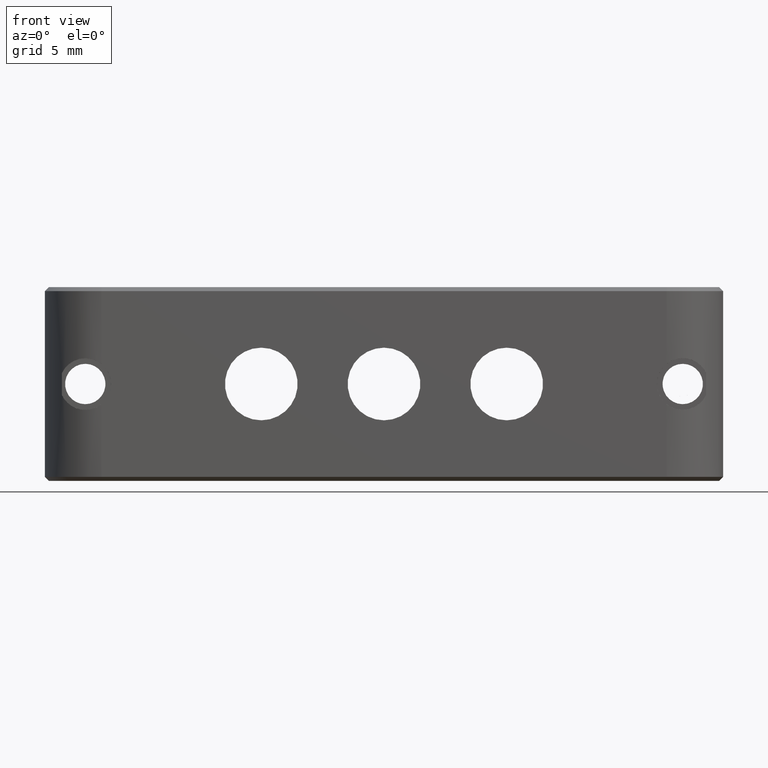
[diagram: clean part render]
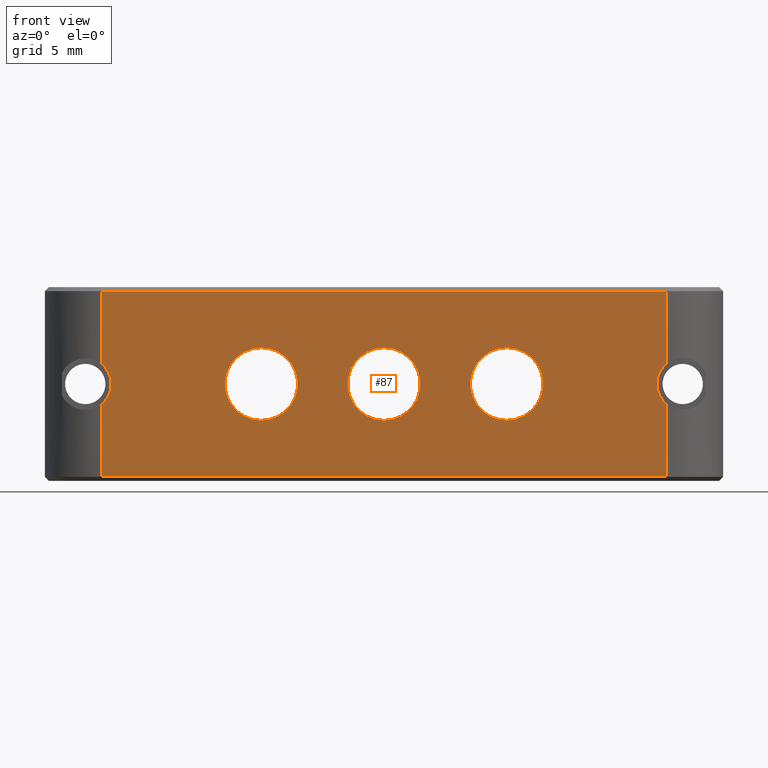
[diagram: same view with one face highlighted and labeled with its STEP entity id]
A machine part, front view. The second image highlights one B-rep face of the part: STEP entity #87.
In plain terms, the highlighted planar face has unit normal (0, 1, -0).
Its self-contained STEP definition (entity closure, byte-faithful):
#56 = VERTEX_POINT ( 'NONE', #5358 ) ;
#72 = DIRECTION ( 'NONE',  ( 0.000000000000000000, 0.000000000000000000, -1.000000000000000000 ) ) ;
#87 = ADVANCED_FACE ( 'NONE', ( #3941, #1854, #1495, #2783 ), #4001, .F. ) ;
#168 = VERTEX_POINT ( 'NONE', #1045 ) ;
#234 = DIRECTION ( 'NONE',  ( 0.000000000000000000, 0.000000000000000000, 1.000000000000000000 ) ) ;
#265 = CIRCLE ( 'NONE', #3100, 2.249999999999997780 ) ;
#274 = DIRECTION ( 'NONE',  ( 0.000000000000000000, 0.000000000000000000, 1.000000000000000000 ) ) ;
#282 = EDGE_LOOP ( 'NONE', ( #1926, #2151 ) ) ;
#350 = EDGE_LOOP ( 'NONE', ( #4413, #3631 ) ) ;
#420 = EDGE_CURVE ( 'NONE', #5262, #4176, #1555, .T. ) ;
#441 = CARTESIAN_POINT ( 'NONE',  ( -7.599999999999999645, -5.204170427930421283E-15, -2.249999999999997780 ) ) ;
#462 = DIRECTION ( 'NONE',  ( 0.000000000000000000, 0.000000000000000000, 1.000000000000000000 ) ) ;
#500 = DIRECTION ( 'NONE',  ( -0.000000000000000000, 1.000000000000000000, -0.000000000000000000 ) ) ;
#545 = EDGE_CURVE ( 'NONE', #5189, #4300, #1122, .T. ) ;
#565 = ORIENTED_EDGE ( 'NONE', *, *, #655, .T. ) ;
#607 = EDGE_CURVE ( 'NONE', #4176, #5189, #2178, .T. ) ;
#609 = EDGE_CURVE ( 'NONE', #5085, #1171, #4975, .T. ) ;
#632 = VERTEX_POINT ( 'NONE', #5626 ) ;
#655 = EDGE_CURVE ( 'NONE', #1182, #4564, #2114, .T. ) ;
#711 = ORIENTED_EDGE ( 'NONE', *, *, #545, .T. ) ;
#836 = CIRCLE ( 'NONE', #5542, 2.249999999999997780 ) ;
#873 = DIRECTION ( 'NONE',  ( 0.000000000000000000, 0.000000000000000000, 1.000000000000000000 ) ) ;
#998 = CIRCLE ( 'NONE', #1873, 2.249999999999997780 ) ;
#1045 = CARTESIAN_POINT ( 'NONE',  ( -17.50000000000000355, -5.204170427930421283E-15, 1.248999599679689210 ) ) ;
#1058 = CARTESIAN_POINT ( 'NONE',  ( -17.50000000000000355, -4.898587196589413026E-15, 5.750000000000008882 ) ) ;
#1067 = ORIENTED_EDGE ( 'NONE', *, *, #2142, .T. ) ;
#1072 = AXIS2_PLACEMENT_3D ( 'NONE', #2653, #4109, #274 ) ;
#1122 = LINE ( 'NONE', #1742, #2046 ) ;
#1171 = VERTEX_POINT ( 'NONE', #441 ) ;
#1182 = VERTEX_POINT ( 'NONE', #2380 ) ;
#1319 = LINE ( 'NONE', #3080, #5887 ) ;
#1362 = VECTOR ( 'NONE', #2153, 1000.000000000000000 ) ;
#1382 = DIRECTION ( 'NONE',  ( 0.000000000000000000, 0.000000000000000000, 1.000000000000000000 ) ) ;
#1434 = CARTESIAN_POINT ( 'NONE',  ( -7.599999999999999645, -5.204170427930421283E-15, 0.000000000000000000 ) ) ;
#1470 = CIRCLE ( 'NONE', #1514, 2.249999999999997780 ) ;
#1495 = FACE_BOUND ( 'NONE', #1769, .T. ) ;
#1501 = DIRECTION ( 'NONE',  ( 0.000000000000000000, 0.000000000000000000, 1.000000000000000000 ) ) ;
#1514 = AXIS2_PLACEMENT_3D ( 'NONE', #5929, #3652, #462 ) ;
#1555 = CIRCLE ( 'NONE', #2223, 1.600000000000001865 ) ;
#1670 = CIRCLE ( 'NONE', #1072, 1.600000000000001865 ) ;
#1742 = CARTESIAN_POINT ( 'NONE',  ( 21.00000000000000000, -4.898587196589413026E-15, 5.750000000000008882 ) ) ;
#1765 = LINE ( 'NONE', #2483, #3490 ) ;
#1769 = EDGE_LOOP ( 'NONE', ( #565, #1067 ) ) ;
#1854 = FACE_BOUND ( 'NONE', #282, .T. ) ;
#1873 = AXIS2_PLACEMENT_3D ( 'NONE', #4497, #2736, #873 ) ;
#1899 = DIRECTION ( 'NONE',  ( -0.000000000000000000, 1.000000000000000000, -0.000000000000000000 ) ) ;
#1923 = EDGE_CURVE ( 'NONE', #4298, #2124, #4033, .T. ) ;
#1926 = ORIENTED_EDGE ( 'NONE', *, *, #4670, .T. ) ;
#2024 = CARTESIAN_POINT ( 'NONE',  ( -7.599999999999999645, -5.204170427930421283E-15, 0.000000000000000000 ) ) ;
#2046 = VECTOR ( 'NONE', #5316, 1000.000000000000000 ) ;
#2114 = CIRCLE ( 'NONE', #5105, 2.249999999999997780 ) ;
#2124 = VERTEX_POINT ( 'NONE', #4925 ) ;
#2142 = EDGE_CURVE ( 'NONE', #4564, #1182, #998, .T. ) ;
#2151 = ORIENTED_EDGE ( 'NONE', *, *, #4974, .T. ) ;
#2153 = DIRECTION ( 'NONE',  ( 0.000000000000000000, -0.000000000000000000, -1.000000000000000000 ) ) ;
#2178 = LINE ( 'NONE', #3819, #5681 ) ;
#2219 = CARTESIAN_POINT ( 'NONE',  ( -17.50000000000000355, -5.204170427930421283E-15, -1.248999599679684769 ) ) ;
#2223 = AXIS2_PLACEMENT_3D ( 'NONE', #4229, #500, #72 ) ;
#2314 = DIRECTION ( 'NONE',  ( -0.000000000000000000, 0.000000000000000000, 1.000000000000000000 ) ) ;
#2351 = DIRECTION ( 'NONE',  ( 0.000000000000000000, 0.000000000000000000, 1.000000000000000000 ) ) ;
#2377 = ORIENTED_EDGE ( 'NONE', *, *, #607, .T. ) ;
#2380 = CARTESIAN_POINT ( 'NONE',  ( 7.599999999999999645, -5.204170427930421283E-15, 2.249999999999997780 ) ) ;
#2467 = CARTESIAN_POINT ( 'NONE',  ( 7.599999999999999645, -5.204170427930421283E-15, 0.000000000000000000 ) ) ;
#2483 = CARTESIAN_POINT ( 'NONE',  ( 17.50000000000000000, -4.898587196589413026E-15, -5.749999999999996447 ) ) ;
#2627 = CARTESIAN_POINT ( 'NONE',  ( 17.50000000000000000, -4.898587196589413026E-15, 5.750000000000008882 ) ) ;
#2653 = CARTESIAN_POINT ( 'NONE',  ( -18.50000000000000000, -5.204170427930421283E-15, 2.265596578422603396E-15 ) ) ;
#2716 = CARTESIAN_POINT ( 'NONE',  ( 17.50000000000000000, -4.898587196589413026E-15, 6.000000000000000000 ) ) ;
#2718 = ORIENTED_EDGE ( 'NONE', *, *, #5380, .T. ) ;
#2736 = DIRECTION ( 'NONE',  ( -0.000000000000000000, 1.000000000000000000, -0.000000000000000000 ) ) ;
#2783 = FACE_BOUND ( 'NONE', #350, .T. ) ;
#2964 = DIRECTION ( 'NONE',  ( -0.000000000000000000, 1.000000000000000000, -0.000000000000000000 ) ) ;
#3001 = ORIENTED_EDGE ( 'NONE', *, *, #1923, .T. ) ;
#3010 = ORIENTED_EDGE ( 'NONE', *, *, #4891, .T. ) ;
#3015 = CARTESIAN_POINT ( 'NONE',  ( 17.50000000000000000, -4.898587196589413026E-15, -5.749999999999996447 ) ) ;
#3080 = CARTESIAN_POINT ( 'NONE',  ( -17.50000000000000355, -4.898587196589413026E-15, 6.000000000000000000 ) ) ;
#3100 = AXIS2_PLACEMENT_3D ( 'NONE', #1434, #1899, #2351 ) ;
#3133 = EDGE_CURVE ( 'NONE', #168, #4298, #1670, .T. ) ;
#3186 = CARTESIAN_POINT ( 'NONE',  ( 21.00000000000000000, -4.898587196589413026E-15, 6.000000000000000000 ) ) ;
#3444 = CARTESIAN_POINT ( 'NONE',  ( 17.50000000000000000, -5.204170427930421283E-15, 1.248999599679686323 ) ) ;
#3490 = VECTOR ( 'NONE', #3922, 1000.000000000000000 ) ;
#3500 = CARTESIAN_POINT ( 'NONE',  ( 7.599999999999999645, -5.204170427930421283E-15, -2.249999999999997780 ) ) ;
#3631 = ORIENTED_EDGE ( 'NONE', *, *, #4638, .T. ) ;
#3652 = DIRECTION ( 'NONE',  ( -0.000000000000000000, 1.000000000000000000, -0.000000000000000000 ) ) ;
#3819 = CARTESIAN_POINT ( 'NONE',  ( 17.50000000000000000, -4.898587196589413026E-15, 6.000000000000000000 ) ) ;
#3922 = DIRECTION ( 'NONE',  ( 1.000000000000000000, 0.000000000000000000, 0.000000000000000000 ) ) ;
#3941 = FACE_OUTER_BOUND ( 'NONE', #5125, .T. ) ;
#4001 = PLANE ( 'NONE',  #5802 ) ;
#4033 = LINE ( 'NONE', #5410, #1362 ) ;
#4109 = DIRECTION ( 'NONE',  ( -0.000000000000000000, 1.000000000000000000, -0.000000000000000000 ) ) ;
#4176 = VERTEX_POINT ( 'NONE', #3444 ) ;
#4211 = ORIENTED_EDGE ( 'NONE', *, *, #3133, .T. ) ;
#4229 = CARTESIAN_POINT ( 'NONE',  ( 18.50000000000000000, -5.204170427930421283E-15, 2.265596578422603396E-15 ) ) ;
#4272 = DIRECTION ( 'NONE',  ( -0.000000000000000000, 0.000000000000000000, 1.000000000000000000 ) ) ;
#4298 = VERTEX_POINT ( 'NONE', #2219 ) ;
#4300 = VERTEX_POINT ( 'NONE', #1058 ) ;
#4320 = VECTOR ( 'NONE', #2314, 1000.000000000000000 ) ;
#4341 = CARTESIAN_POINT ( 'NONE',  ( 0.000000000000000000, -5.204170427930421283E-15, 0.000000000000000000 ) ) ;
#4371 = EDGE_CURVE ( 'NONE', #4300, #168, #1319, .T. ) ;
#4413 = ORIENTED_EDGE ( 'NONE', *, *, #609, .T. ) ;
#4450 = CARTESIAN_POINT ( 'NONE',  ( 17.50000000000000000, -5.204170427930421283E-15, -1.248999599679681882 ) ) ;
#4488 = AXIS2_PLACEMENT_3D ( 'NONE', #2024, #2964, #4751 ) ;
#4497 = CARTESIAN_POINT ( 'NONE',  ( 7.599999999999999645, -5.204170427930421283E-15, 0.000000000000000000 ) ) ;
#4564 = VERTEX_POINT ( 'NONE', #3500 ) ;
#4638 = EDGE_CURVE ( 'NONE', #1171, #5085, #265, .T. ) ;
#4670 = EDGE_CURVE ( 'NONE', #632, #56, #836, .T. ) ;
#4751 = DIRECTION ( 'NONE',  ( 0.000000000000000000, 0.000000000000000000, 1.000000000000000000 ) ) ;
#4891 = EDGE_CURVE ( 'NONE', #2124, #5617, #1765, .T. ) ;
#4894 = CARTESIAN_POINT ( 'NONE',  ( -7.599999999999999645, -5.204170427930421283E-15, 2.249999999999997780 ) ) ;
#4925 = CARTESIAN_POINT ( 'NONE',  ( -17.50000000000000355, -4.898587196589413026E-15, -5.749999999999996447 ) ) ;
#4974 = EDGE_CURVE ( 'NONE', #56, #632, #1470, .T. ) ;
#4975 = CIRCLE ( 'NONE', #4488, 2.249999999999997780 ) ;
#5065 = ORIENTED_EDGE ( 'NONE', *, *, #420, .T. ) ;
#5085 = VERTEX_POINT ( 'NONE', #4894 ) ;
#5105 = AXIS2_PLACEMENT_3D ( 'NONE', #2467, #5668, #1501 ) ;
#5125 = EDGE_LOOP ( 'NONE', ( #3001, #3010, #2718, #5065, #2377, #711, #5331, #4211 ) ) ;
#5189 = VERTEX_POINT ( 'NONE', #2627 ) ;
#5262 = VERTEX_POINT ( 'NONE', #4450 ) ;
#5283 = LINE ( 'NONE', #2716, #4320 ) ;
#5316 = DIRECTION ( 'NONE',  ( -1.000000000000000000, 0.000000000000000000, 0.000000000000000000 ) ) ;
#5331 = ORIENTED_EDGE ( 'NONE', *, *, #4371, .T. ) ;
#5358 = CARTESIAN_POINT ( 'NONE',  ( 2.755455298081541820E-16, -5.204170427930421283E-15, -2.249999999999997780 ) ) ;
#5380 = EDGE_CURVE ( 'NONE', #5617, #5262, #5283, .T. ) ;
#5410 = CARTESIAN_POINT ( 'NONE',  ( -17.50000000000000355, -4.898587196589413026E-15, 6.000000000000000000 ) ) ;
#5425 = DIRECTION ( 'NONE',  ( 0.000000000000000000, -0.000000000000000000, -1.000000000000000000 ) ) ;
#5443 = DIRECTION ( 'NONE',  ( 0.000000000000000000, 1.000000000000000000, -0.000000000000000000 ) ) ;
#5542 = AXIS2_PLACEMENT_3D ( 'NONE', #4341, #5659, #234 ) ;
#5617 = VERTEX_POINT ( 'NONE', #3015 ) ;
#5626 = CARTESIAN_POINT ( 'NONE',  ( 0.000000000000000000, -5.204170427930421283E-15, 2.249999999999997780 ) ) ;
#5659 = DIRECTION ( 'NONE',  ( -0.000000000000000000, 1.000000000000000000, -0.000000000000000000 ) ) ;
#5668 = DIRECTION ( 'NONE',  ( -0.000000000000000000, 1.000000000000000000, -0.000000000000000000 ) ) ;
#5681 = VECTOR ( 'NONE', #4272, 1000.000000000000000 ) ;
#5802 = AXIS2_PLACEMENT_3D ( 'NONE', #3186, #5443, #1382 ) ;
#5887 = VECTOR ( 'NONE', #5425, 1000.000000000000000 ) ;
#5929 = CARTESIAN_POINT ( 'NONE',  ( 0.000000000000000000, -5.204170427930421283E-15, 0.000000000000000000 ) ) ;